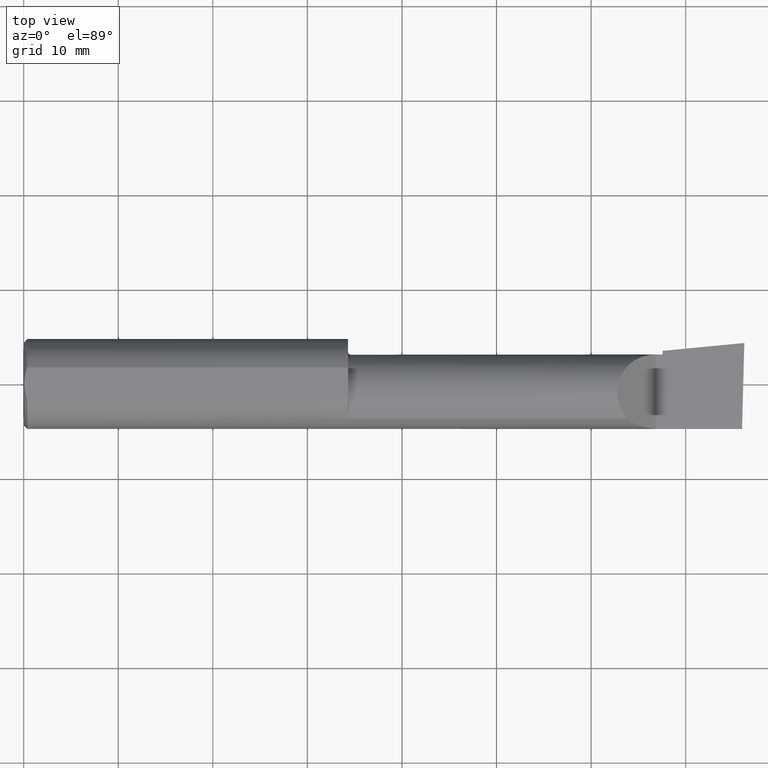
[diagram: clean part render]
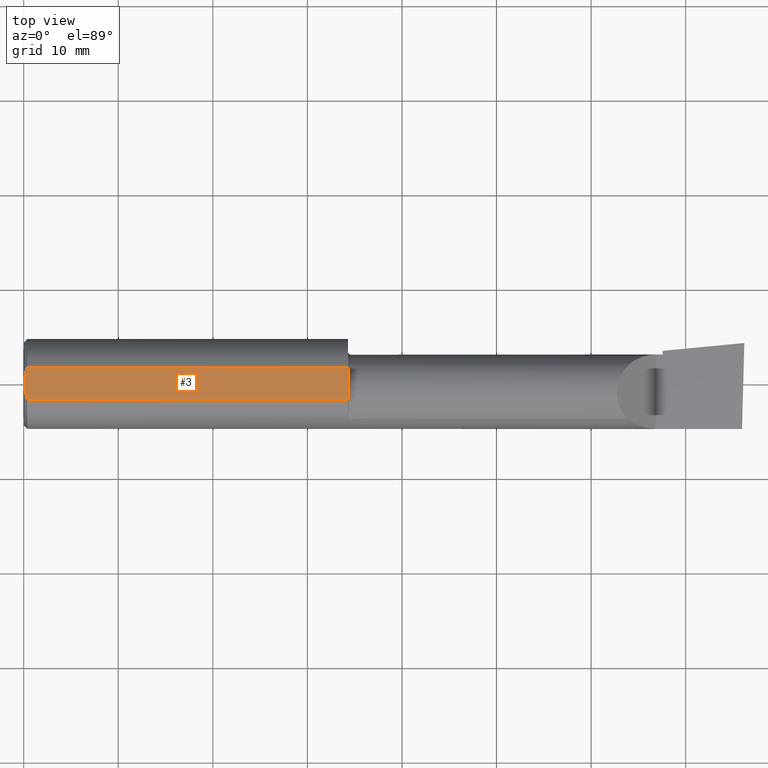
[diagram: same view with one face highlighted and labeled with its STEP entity id]
A machine part, top view. The second image highlights one B-rep face of the part: STEP entity #3.
In plain terms, the highlighted planar face has unit normal (0, -0, -1).
Its self-contained STEP definition (entity closure, byte-faithful):
#3 = ADVANCED_FACE ( 'NONE', ( #382 ), #74, .F. ) ;
#19 = DIRECTION ( 'NONE',  ( -1.000000000000000000, -0.0000000000000000000, -0.0000000000000000000 ) ) ;
#26 = CARTESIAN_POINT ( 'NONE',  ( 0.01499999999999997863, -0.06597272163553657975, 0.1753499999999999781 ) ) ;
#35 = CARTESIAN_POINT ( 'NONE',  ( 3.000000000000000444, 0.2373500000000000332, 0.1753499999999999504 ) ) ;
#37 = CARTESIAN_POINT ( 'NONE',  ( 0.0000000000000000000, 0.06597272163553677404, 0.1753499999999999226 ) ) ;
#38 = CARTESIAN_POINT ( 'NONE',  ( 1.350000000000000311, 0.2373500000000000332, 0.1753499999999999504 ) ) ;
#42 = DIRECTION ( 'NONE',  ( -5.691349986800549142E-18, -1.000000000000000000, 1.438723400918613551E-16 ) ) ;
#45 = VERTEX_POINT ( 'NONE', #249 ) ;
#62 = VERTEX_POINT ( 'NONE', #218 ) ;
#74 = PLANE ( 'NONE',  #450 ) ;
#97 = B_SPLINE_CURVE_WITH_KNOTS ( 'NONE', 3,
 ( #543, #158, #283, #275, #296, #290 ),
 .UNSPECIFIED., .F., .F.,
 ( 4, 2, 4 ),
 ( 0.003480013901590607410, 0.004330767971208085432, 0.005181522040825563453 ),
 .UNSPECIFIED. ) ;
#116 = EDGE_CURVE ( 'NONE', #316, #521, #488, .T. ) ;
#123 = CARTESIAN_POINT ( 'NONE',  ( 0.003000000000000218638, 2.334609607045083916E-17, 0.1753499999999999781 ) ) ;
#137 = CARTESIAN_POINT ( 'NONE',  ( 0.003000000000000171800, -0.01126410975715119375, 0.1753500000000000059 ) ) ;
#140 = CARTESIAN_POINT ( 'NONE',  ( 0.004093196532652217806, -0.02240707710020815174, 0.1753499999999999504 ) ) ;
#142 = CARTESIAN_POINT ( 'NONE',  ( 0.01499999999999997863, -0.06597272163553657975, 0.1753499999999999781 ) ) ;
#145 = ORIENTED_EDGE ( 'NONE', *, *, #294, .F. ) ;
#146 = CARTESIAN_POINT ( 'NONE',  ( 0.01128414053810044074, -0.05542038647445821781, 0.1753499999999999781 ) ) ;
#156 = CARTESIAN_POINT ( 'NONE',  ( 0.008227791779583793277, -0.04447712204611815184, 0.1753499999999999781 ) ) ;
#158 = CARTESIAN_POINT ( 'NONE',  ( 0.003000000000000172234, 0.01127363201155565098, 0.1753499999999999781 ) ) ;
#164 = EDGE_CURVE ( 'NONE', #45, #394, #536, .T. ) ;
#193 = CARTESIAN_POINT ( 'NONE',  ( 1.350000000000000311, -0.06597272163553659363, 0.1753499999999999781 ) ) ;
#199 = EDGE_CURVE ( 'NONE', #521, #62, #97, .T. ) ;
#218 = CARTESIAN_POINT ( 'NONE',  ( 0.01499999999999999424, 0.06597272163553677404, 0.1753499999999999226 ) ) ;
#229 = ORIENTED_EDGE ( 'NONE', *, *, #556, .F. ) ;
#247 = DIRECTION ( 'NONE',  ( 0.0000000000000000000, -1.438723400918613551E-16, -1.000000000000000000 ) ) ;
#249 = CARTESIAN_POINT ( 'NONE',  ( 1.350000000000000311, 0.06597272163553680180, 0.1753499999999999781 ) ) ;
#262 = CARTESIAN_POINT ( 'NONE',  ( 0.0000000000000000000, -0.06597272163553671853, 0.1753499999999999226 ) ) ;
#267 = ORIENTED_EDGE ( 'NONE', *, *, #116, .F. ) ;
#275 = CARTESIAN_POINT ( 'NONE',  ( 0.008244775919947433529, 0.04453482769755864185, 0.1753499999999999504 ) ) ;
#283 = CARTESIAN_POINT ( 'NONE',  ( 0.004115035183746283340, 0.02255629470626750385, 0.1753499999999999781 ) ) ;
#290 = CARTESIAN_POINT ( 'NONE',  ( 0.01499999999999999424, 0.06597272163553677404, 0.1753499999999999226 ) ) ;
#294 = EDGE_CURVE ( 'NONE', #62, #45, #305, .T. ) ;
#293 = VECTOR ( 'NONE', #42, 39.37007874015748143 ) ;
#296 = CARTESIAN_POINT ( 'NONE',  ( 0.01125230581755091823, 0.05532998191409932431, 0.1753500000000000059 ) ) ;
#303 = ORIENTED_EDGE ( 'NONE', *, *, #164, .F. ) ;
#305 = LINE ( 'NONE', #37, #558 ) ;
#316 = VERTEX_POINT ( 'NONE', #26 ) ;
#351 = CARTESIAN_POINT ( 'NONE',  ( 0.003000000000000218638, 2.334609607045083916E-17, 0.1753499999999999781 ) ) ;
#382 = FACE_OUTER_BOUND ( 'NONE', #565, .T. ) ;
#394 = VERTEX_POINT ( 'NONE', #193 ) ;
#435 = ORIENTED_EDGE ( 'NONE', *, *, #199, .F. ) ;
#450 = AXIS2_PLACEMENT_3D ( 'NONE', #35, #247, #514 ) ;
#486 = LINE ( 'NONE', #262, #497 ) ;
#488 = B_SPLINE_CURVE_WITH_KNOTS ( 'NONE', 3,
 ( #142, #146, #156, #140, #137, #123 ),
 .UNSPECIFIED., .F., .F.,
 ( 4, 2, 4 ),
 ( 0.001779942938356815062, 0.002629978419973711019, 0.003480013901590607410 ),
 .UNSPECIFIED. ) ;
#497 = VECTOR ( 'NONE', #19, 39.37007874015748143 ) ;
#514 = DIRECTION ( 'NONE',  ( 0.0000000000000000000, 1.000000000000000000, -1.438723400918613551E-16 ) ) ;
#521 = VERTEX_POINT ( 'NONE', #351 ) ;
#536 = LINE ( 'NONE', #38, #293 ) ;
#543 = CARTESIAN_POINT ( 'NONE',  ( 0.003000000000000218638, 2.334609607045083916E-17, 0.1753499999999999781 ) ) ;
#556 = EDGE_CURVE ( 'NONE', #394, #316, #486, .T. ) ;
#558 = VECTOR ( 'NONE', #585, 39.37007874015748143 ) ;
#565 = EDGE_LOOP ( 'NONE', ( #303, #145, #435, #267, #229 ) ) ;
#585 = DIRECTION ( 'NONE',  ( 1.000000000000000000, 0.0000000000000000000, 0.0000000000000000000 ) ) ;